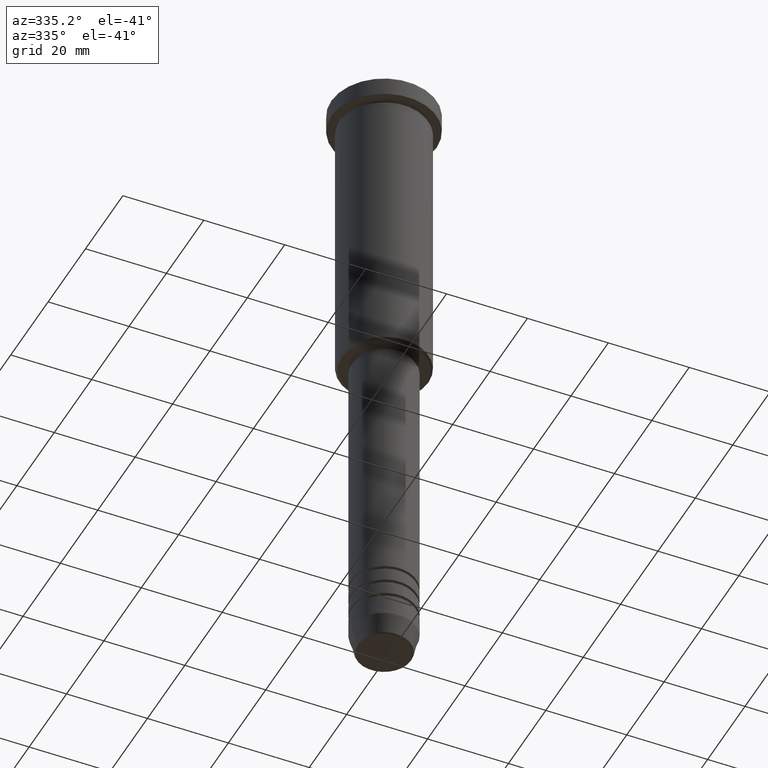
[diagram: clean part render]
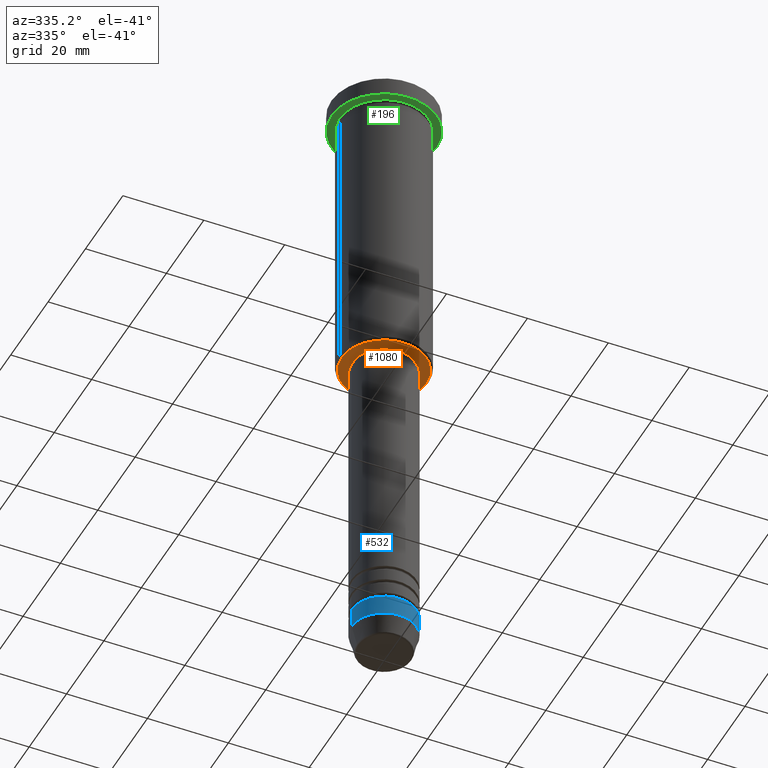
[diagram: same view with three faces highlighted in distinct colors, each labeled with its STEP entity id]
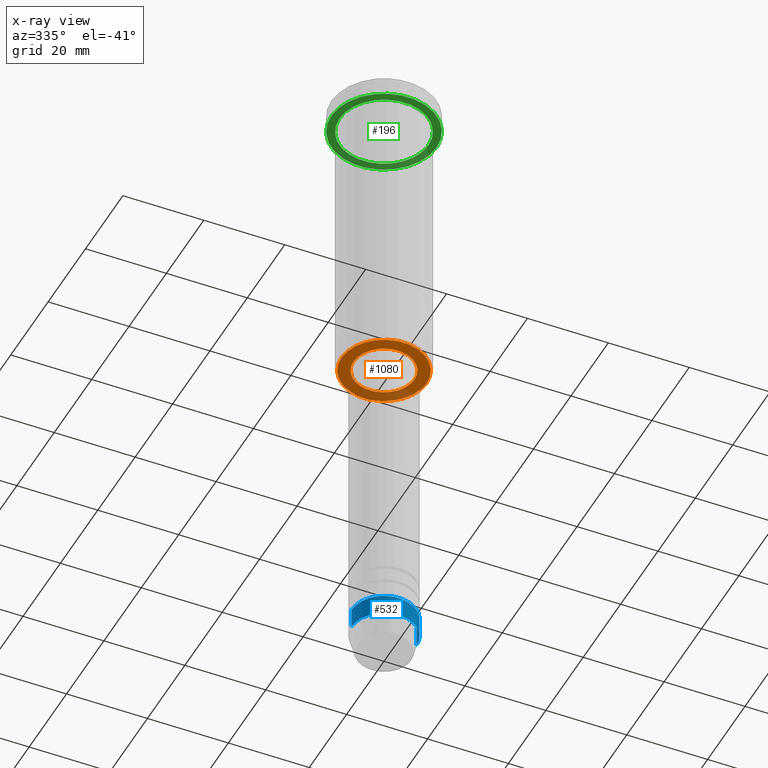
[diagram: x-ray of the same camera — body ghosted, the three highlighted faces saturated]
A machine part, auxiliary view with three faces highlighted in distinct colors.
The next image is the same camera in x-ray (body ghosted, the three faces saturated) — at least one of them is partly hidden behind the body in this view.
Their STEP definitions:

[orange] entity #1080 — the highlighted planar face has unit normal (0, 0, -1).
#13 = CARTESIAN_POINT ( 'NONE',  ( 0.000000000000000000, 0.000000000000000000, -76.00000000000001421 ) ) ;
#92 = CARTESIAN_POINT ( 'NONE',  ( 7.500000000000000000, 0.000000000000000000, -76.00000000000001421 ) ) ;
#104 = CARTESIAN_POINT ( 'NONE',  ( -7.500000000000000000, 9.184850993605147944E-16, -76.00000000000001421 ) ) ;
#108 = AXIS2_PLACEMENT_3D ( 'NONE', #13, #181, #639 ) ;
#144 = VERTEX_POINT ( 'NONE', #92 ) ;
#158 = EDGE_CURVE ( 'NONE', #211, #144, #273, .T. ) ;
#181 = DIRECTION ( 'NONE',  ( -0.000000000000000000, -0.000000000000000000, 1.000000000000000000 ) ) ;
#195 = DIRECTION ( 'NONE',  ( -1.000000000000000000, 0.000000000000000000, -0.000000000000000000 ) ) ;
#202 = AXIS2_PLACEMENT_3D ( 'NONE', #386, #215, #195 ) ;
#207 = PLANE ( 'NONE',  #202 ) ;
#211 = VERTEX_POINT ( 'NONE', #104 ) ;
#215 = DIRECTION ( 'NONE',  ( 0.000000000000000000, 0.000000000000000000, -1.000000000000000000 ) ) ;
#262 = CARTESIAN_POINT ( 'NONE',  ( 0.000000000000000000, 0.000000000000000000, -76.00000000000001421 ) ) ;
#273 = CIRCLE ( 'NONE', #108, 7.500000000000000000 ) ;
#279 = DIRECTION ( 'NONE',  ( 0.000000000000000000, 0.000000000000000000, -1.000000000000000000 ) ) ;
#286 = VERTEX_POINT ( 'NONE', #573 ) ;
#386 = CARTESIAN_POINT ( 'NONE',  ( 0.000000000000000000, 11.00000000000000000, -76.00000000000001421 ) ) ;
#428 = FACE_BOUND ( 'NONE', #969, .T. ) ;
#444 = AXIS2_PLACEMENT_3D ( 'NONE', #927, #1175, #459 ) ;
#459 = DIRECTION ( 'NONE',  ( -1.000000000000000000, 0.000000000000000000, 0.000000000000000000 ) ) ;
#558 = EDGE_LOOP ( 'NONE', ( #975, #968 ) ) ;
#573 = CARTESIAN_POINT ( 'NONE',  ( 10.49999999999996803, 0.000000000000000000, -76.00000000000001421 ) ) ;
#632 = DIRECTION ( 'NONE',  ( 1.000000000000000000, 0.000000000000000000, 0.000000000000000000 ) ) ;
#639 = DIRECTION ( 'NONE',  ( 1.000000000000000000, 0.000000000000000000, 0.000000000000000000 ) ) ;
#674 = AXIS2_PLACEMENT_3D ( 'NONE', #262, #279, #795 ) ;
#693 = ORIENTED_EDGE ( 'NONE', *, *, #158, .T. ) ;
#724 = CARTESIAN_POINT ( 'NONE',  ( 0.000000000000000000, 0.000000000000000000, -76.00000000000001421 ) ) ;
#752 = AXIS2_PLACEMENT_3D ( 'NONE', #724, #893, #632 ) ;
#795 = DIRECTION ( 'NONE',  ( -1.000000000000000000, 0.000000000000000000, 0.000000000000000000 ) ) ;
#836 = CARTESIAN_POINT ( 'NONE',  ( -10.49999999999996803, 1.316495309083402645E-15, -76.00000000000001421 ) ) ;
#885 = FACE_OUTER_BOUND ( 'NONE', #558, .T. ) ;
#893 = DIRECTION ( 'NONE',  ( -0.000000000000000000, -0.000000000000000000, 1.000000000000000000 ) ) ;
#927 = CARTESIAN_POINT ( 'NONE',  ( 0.000000000000000000, 0.000000000000000000, -76.00000000000001421 ) ) ;
#944 = CIRCLE ( 'NONE', #444, 10.49999999999996803 ) ;
#968 = ORIENTED_EDGE ( 'NONE', *, *, #1092, .T. ) ;
#969 = EDGE_LOOP ( 'NONE', ( #1059, #693 ) ) ;
#975 = ORIENTED_EDGE ( 'NONE', *, *, #992, .T. ) ;
#992 = EDGE_CURVE ( 'NONE', #286, #1157, #1111, .T. ) ;
#997 = EDGE_CURVE ( 'NONE', #144, #211, #1182, .T. ) ;
#1059 = ORIENTED_EDGE ( 'NONE', *, *, #997, .T. ) ;
#1080 = ADVANCED_FACE ( 'NONE', ( #885, #428 ), #207, .T. ) ;
#1092 = EDGE_CURVE ( 'NONE', #1157, #286, #944, .T. ) ;
#1111 = CIRCLE ( 'NONE', #674, 10.49999999999996803 ) ;
#1157 = VERTEX_POINT ( 'NONE', #836 ) ;
#1175 = DIRECTION ( 'NONE',  ( 0.000000000000000000, 0.000000000000000000, -1.000000000000000000 ) ) ;
#1182 = CIRCLE ( 'NONE', #752, 7.500000000000000000 ) ;

[blue] entity #532 — the highlighted cylindrical surface (edge-blend (fillet) strip) has radius 8 mm, axis along (-0, -0, 1).
#16 = CARTESIAN_POINT ( 'NONE',  ( 8.000000000000000000, 0.000000000000000000, -155.0000000000000000 ) ) ;
#44 = CARTESIAN_POINT ( 'NONE',  ( 8.000000000000000000, 0.000000000000000000, -150.0000000000000000 ) ) ;
#50 = DIRECTION ( 'NONE',  ( -0.000000000000000000, -0.000000000000000000, 1.000000000000000000 ) ) ;
#51 = VERTEX_POINT ( 'NONE', #16 ) ;
#101 = AXIS2_PLACEMENT_3D ( 'NONE', #1148, #728, #718 ) ;
#106 = VERTEX_POINT ( 'NONE', #538 ) ;
#127 = LINE ( 'NONE', #249, #161 ) ;
#161 = VECTOR ( 'NONE', #50, 1000.000000000000000 ) ;
#166 = DIRECTION ( 'NONE',  ( -0.000000000000000000, -0.000000000000000000, 1.000000000000000000 ) ) ;
#249 = CARTESIAN_POINT ( 'NONE',  ( -8.000000000000000000, 9.797174393178825657E-16, 0.000000000000000000 ) ) ;
#251 = EDGE_LOOP ( 'NONE', ( #815, #374, #1004, #352 ) ) ;
#352 = ORIENTED_EDGE ( 'NONE', *, *, #580, .F. ) ;
#354 = CARTESIAN_POINT ( 'NONE',  ( 0.000000000000000000, 0.000000000000000000, 0.000000000000000000 ) ) ;
#374 = ORIENTED_EDGE ( 'NONE', *, *, #1042, .T. ) ;
#431 = VERTEX_POINT ( 'NONE', #1051 ) ;
#471 = LINE ( 'NONE', #1105, #1094 ) ;
#477 = FACE_OUTER_BOUND ( 'NONE', #251, .T. ) ;
#532 = ADVANCED_FACE ( 'NONE', ( #477 ), #725, .T. ) ;
#538 = CARTESIAN_POINT ( 'NONE',  ( -8.000000000000000000, 9.797174393178825657E-16, -150.0000000000000000 ) ) ;
#555 = DIRECTION ( 'NONE',  ( -0.000000000000000000, -0.000000000000000000, 1.000000000000000000 ) ) ;
#580 = EDGE_CURVE ( 'NONE', #106, #808, #884, .T. ) ;
#718 = DIRECTION ( 'NONE',  ( 1.000000000000000000, 0.000000000000000000, 0.000000000000000000 ) ) ;
#722 = DIRECTION ( 'NONE',  ( 1.000000000000000000, 0.000000000000000000, 0.000000000000000000 ) ) ;
#725 = CYLINDRICAL_SURFACE ( 'NONE', #735, 8.000000000000000000 ) ;
#728 = DIRECTION ( 'NONE',  ( -0.000000000000000000, -0.000000000000000000, 1.000000000000000000 ) ) ;
#735 = AXIS2_PLACEMENT_3D ( 'NONE', #354, #166, #722 ) ;
#763 = AXIS2_PLACEMENT_3D ( 'NONE', #902, #1060, #978 ) ;
#800 = EDGE_CURVE ( 'NONE', #431, #106, #127, .T. ) ;
#808 = VERTEX_POINT ( 'NONE', #44 ) ;
#815 = ORIENTED_EDGE ( 'NONE', *, *, #800, .F. ) ;
#884 = CIRCLE ( 'NONE', #763, 8.000000000000000000 ) ;
#902 = CARTESIAN_POINT ( 'NONE',  ( 0.000000000000000000, 0.000000000000000000, -150.0000000000000000 ) ) ;
#978 = DIRECTION ( 'NONE',  ( 1.000000000000000000, 0.000000000000000000, 0.000000000000000000 ) ) ;
#1004 = ORIENTED_EDGE ( 'NONE', *, *, #1128, .T. ) ;
#1020 = CIRCLE ( 'NONE', #101, 8.000000000000000000 ) ;
#1042 = EDGE_CURVE ( 'NONE', #431, #51, #1020, .T. ) ;
#1051 = CARTESIAN_POINT ( 'NONE',  ( -8.000000000000000000, 9.797174393178825657E-16, -155.0000000000000000 ) ) ;
#1060 = DIRECTION ( 'NONE',  ( -0.000000000000000000, -0.000000000000000000, 1.000000000000000000 ) ) ;
#1094 = VECTOR ( 'NONE', #555, 1000.000000000000000 ) ;
#1105 = CARTESIAN_POINT ( 'NONE',  ( 8.000000000000000000, 0.000000000000000000, 0.000000000000000000 ) ) ;
#1128 = EDGE_CURVE ( 'NONE', #51, #808, #471, .T. ) ;
#1148 = CARTESIAN_POINT ( 'NONE',  ( 0.000000000000000000, 0.000000000000000000, -155.0000000000000000 ) ) ;

[green] entity #196 — the highlighted planar face has unit normal (0, 0, -1).
#43 = AXIS2_PLACEMENT_3D ( 'NONE', #411, #306, #664 ) ;
#45 = FACE_OUTER_BOUND ( 'NONE', #998, .T. ) ;
#107 = CIRCLE ( 'NONE', #271, 11.00000000000000000 ) ;
#109 = EDGE_CURVE ( 'NONE', #704, #193, #107, .T. ) ;
#133 = DIRECTION ( 'NONE',  ( 1.000000000000000000, 0.000000000000000000, 0.000000000000000000 ) ) ;
#191 = ORIENTED_EDGE ( 'NONE', *, *, #831, .T. ) ;
#193 = VERTEX_POINT ( 'NONE', #230 ) ;
#196 = ADVANCED_FACE ( 'NONE', ( #499, #45 ), #476, .T. ) ;
#230 = CARTESIAN_POINT ( 'NONE',  ( -11.00000000000000000, 0.000000000000000000, -4.999999999999999112 ) ) ;
#232 = EDGE_CURVE ( 'NONE', #759, #1102, #1127, .T. ) ;
#252 = ORIENTED_EDGE ( 'NONE', *, *, #109, .T. ) ;
#271 = AXIS2_PLACEMENT_3D ( 'NONE', #1006, #903, #810 ) ;
#289 = AXIS2_PLACEMENT_3D ( 'NONE', #1037, #582, #133 ) ;
#306 = DIRECTION ( 'NONE',  ( 0.000000000000000000, 0.000000000000000000, -1.000000000000000000 ) ) ;
#325 = DIRECTION ( 'NONE',  ( -0.000000000000000000, -0.000000000000000000, 1.000000000000000000 ) ) ;
#333 = DIRECTION ( 'NONE',  ( 1.000000000000000000, 0.000000000000000000, 0.000000000000000000 ) ) ;
#342 = CARTESIAN_POINT ( 'NONE',  ( 0.000000000000000000, 0.000000000000000000, -5.000000000000000000 ) ) ;
#343 = ORIENTED_EDGE ( 'NONE', *, *, #232, .F. ) ;
#411 = CARTESIAN_POINT ( 'NONE',  ( 0.000000000000000000, 13.00000000000000000, -5.000000000000000000 ) ) ;
#421 = CIRCLE ( 'NONE', #1050, 13.00000000000000000 ) ;
#475 = CARTESIAN_POINT ( 'NONE',  ( -13.00000000000000000, 1.592040838891559095E-15, -5.000000000000000000 ) ) ;
#476 = PLANE ( 'NONE',  #43 ) ;
#499 = FACE_BOUND ( 'NONE', #798, .T. ) ;
#582 = DIRECTION ( 'NONE',  ( -0.000000000000000000, -0.000000000000000000, 1.000000000000000000 ) ) ;
#664 = DIRECTION ( 'NONE',  ( -1.000000000000000000, 0.000000000000000000, -0.000000000000000000 ) ) ;
#677 = DIRECTION ( 'NONE',  ( -1.000000000000000000, 0.000000000000000000, 0.000000000000000000 ) ) ;
#703 = ORIENTED_EDGE ( 'NONE', *, *, #875, .F. ) ;
#704 = VERTEX_POINT ( 'NONE', #806 ) ;
#737 = CIRCLE ( 'NONE', #881, 11.00000000000000000 ) ;
#759 = VERTEX_POINT ( 'NONE', #1031 ) ;
#775 = DIRECTION ( 'NONE',  ( -0.000000000000000000, -0.000000000000000000, 1.000000000000000000 ) ) ;
#798 = EDGE_LOOP ( 'NONE', ( #191, #252 ) ) ;
#806 = CARTESIAN_POINT ( 'NONE',  ( 11.00000000000000000, 1.347111479062088405E-15, -4.999999999999999112 ) ) ;
#810 = DIRECTION ( 'NONE',  ( -1.000000000000000000, 0.000000000000000000, 0.000000000000000000 ) ) ;
#831 = EDGE_CURVE ( 'NONE', #193, #704, #737, .T. ) ;
#875 = EDGE_CURVE ( 'NONE', #1102, #759, #421, .T. ) ;
#881 = AXIS2_PLACEMENT_3D ( 'NONE', #1134, #325, #677 ) ;
#903 = DIRECTION ( 'NONE',  ( -0.000000000000000000, -0.000000000000000000, 1.000000000000000000 ) ) ;
#998 = EDGE_LOOP ( 'NONE', ( #343, #703 ) ) ;
#1006 = CARTESIAN_POINT ( 'NONE',  ( 0.000000000000000000, 0.000000000000000000, -5.000000000000000000 ) ) ;
#1031 = CARTESIAN_POINT ( 'NONE',  ( 13.00000000000000000, 0.000000000000000000, -5.000000000000000000 ) ) ;
#1037 = CARTESIAN_POINT ( 'NONE',  ( 0.000000000000000000, 0.000000000000000000, -5.000000000000000000 ) ) ;
#1050 = AXIS2_PLACEMENT_3D ( 'NONE', #342, #775, #333 ) ;
#1102 = VERTEX_POINT ( 'NONE', #475 ) ;
#1127 = CIRCLE ( 'NONE', #289, 13.00000000000000000 ) ;
#1134 = CARTESIAN_POINT ( 'NONE',  ( 0.000000000000000000, 0.000000000000000000, -5.000000000000000000 ) ) ;